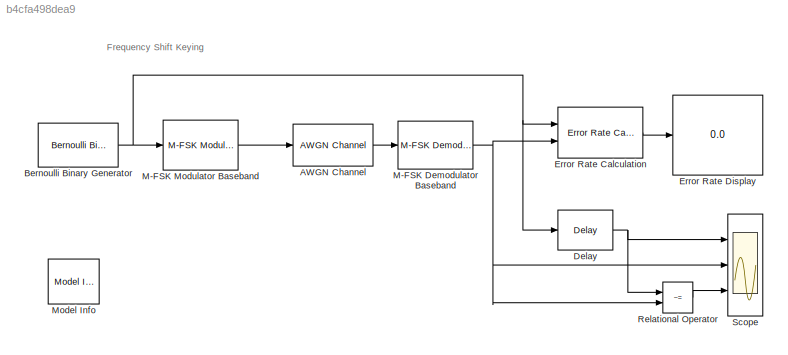
MODEL slx_b4cfa498dea9
KIND model
BLOCK [Reference] AWGN Channel  REF=commchan3/AWGN
Channel
  EbNodB = 10
  EsNodB = 10
  InputProcessing = Columns as channels (frame based)
  Ports = [1, 1]
  Ps = 1
  SNRdB = 10
  SourceBlock = commchan3/AWGN\nChannel
  SourceType = AWGN Channel
  Tsym = 1/1200
  UserDataPersistent = on
  bitsPerSym = 1
  noiseMode = Signal to noise ratio  (Es/No)
  seed = 113
  variance = 1
BLOCK [Reference] Bernoulli Binary Generator  REF=commrandsrc2/Bernoulli Binary
Generator
  P = 0.5
  Ports = [0, 1]
  SourceBlock = commrandsrc2/Bernoulli Binary\nGenerator
  SourceType = Bernoulli Binary Generator
  Ts = 1/1200
  frameBased = off
  orient = off
  outDataType = double
  sampPerFrame = 1
  seed = 89
BLOCK [Reference] Delay  REF=dspsigops/Delay
  InputProcessing = Elements as channels (sample based)
  Ports = [1, 1]
  SourceBlock = dspsigops/Delay
  SourceType = Delay
  UserDataPersistent = on
  delay = 1
  dif_ic_for_ch = off
  dif_ic_for_dly = off
  dly_unit = Samples
  ic = 0
  ic_detail = off
  reset_popup = None
BLOCK [Reference] Error Rate Calculation  REF=commsink2/Error Rate
Calculation
  N = 1
  PMode = Port
  Ports = [2, 1]
  RsMode2 = off
  SourceBlock = commsink2/Error Rate\nCalculation
  SourceType = Error Rate Calculation
  WsName = ErrorVec
  cp_mode = Entire frame
  maxBits = 1e5
  numErr = 100
  st_delay = 0
  stop = off
  subframe = []
BLOCK [Display] Error Rate Display
  Decimation = 1
  Ports = [1]
BLOCK [Reference] M-FSK Demodulator Baseband  REF=commdigbbndfm2/M-FSK
Demodulator
Baseband
  Dec = Binary
  M = 2
  OutType = Integer
  Ports = [1, 1]
  RateOptions = Allow multirate processing
  SourceBlock = commdigbbndfm2/M-FSK\nDemodulator\nBaseband
  SourceType = M-FSK Demodulator Baseband
  UserDataPersistent = on
  freqSep = 1000
  numSamp = 5
  outDataType = double
BLOCK [Reference] M-FSK Modulator Baseband  REF=commdigbbndfm2/M-FSK
Modulator
Baseband
  Enc = Binary
  InType = Integer
  M = 2
  Ports = [1, 1]
  RateOptions = Allow multirate processing
  SourceBlock = commdigbbndfm2/M-FSK\nModulator\nBaseband
  SourceType = M-FSK Modulator Baseband
  UserDataPersistent = on
  freqSep = 1000
  numSamp = 5
  outDataType = double
  phaseType = Continuous
BLOCK [Reference] Model Info  REF=simulink/Model-Wide
Utilities/Model Info
  BlockCM = None
  DisplayStringWithTags = Info
  Frame = on
  HorizontalTextAlignment = Center
  InitialBlockCM = None
  LeftAlignmentValue = 0.5
  MaskDisplayString = Info
  Ports = []
  SourceBlock = simulink/Model-Wide\nUtilities/Model Info
  SourceBlockDiagram = doc_fsk
  SourceType = CMBlock
  TagMaxNumber = 20
BLOCK [RelationalOperator] Relational Operator
  Operator = ~=
  Ports = [2, 1]
BLOCK [Scope] Scope
  DataFormat = StructureWithTime
  Floating = off
  NumInputPorts = 3
  Ports = [3]
  SampleTime = 0
  ShowLegends = off
  TimeRange = 1
  YMax = 2~2~2
  YMin = -1~-1~-1
ANNOTATION (root): Frequency Shift Keying
LINE AWGN Channel:1 -> M-FSK Demodulator Baseband:1
NET Bernoulli Binary Generator:1 -> Delay:1, Error Rate Calculation:1, M-FSK Modulator Baseband:1
NET Delay:1 -> Relational Operator:1, Scope:1
LINE Error Rate Calculation:1 -> Error Rate Display:1
NET M-FSK Demodulator Baseband:1 -> Error Rate Calculation:2, Relational Operator:2, Scope:2
LINE M-FSK Modulator Baseband:1 -> AWGN Channel:1
LINE Relational Operator:1 -> Scope:3
note: NET lines group one-source signal fan-out (src -> all destinations, sorted); 1:1 wires keep LINE
